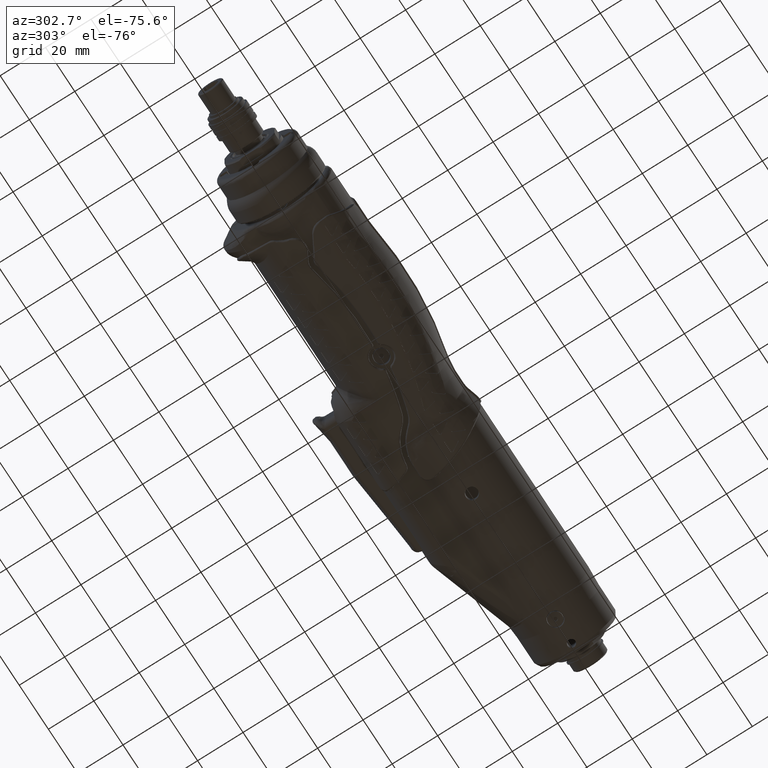
[diagram: clean part render]
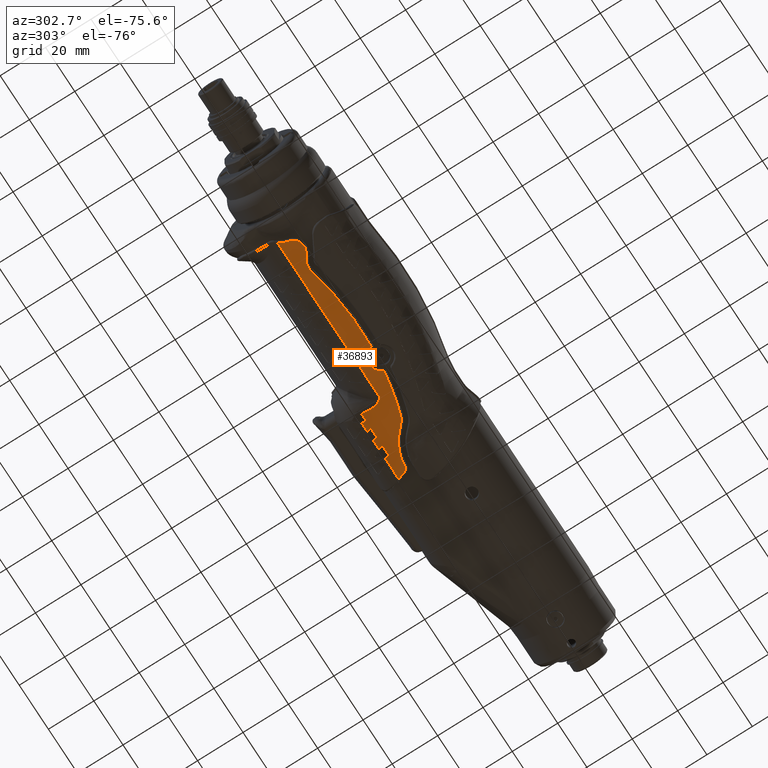
[diagram: same view with one face highlighted and labeled with its STEP entity id]
A machine part, auxiliary view. The second image highlights one B-rep face of the part: STEP entity #36893.
In plain terms, the highlighted planar face has unit normal (0, -0.2079, 0.9781).
Its self-contained STEP definition (entity closure, byte-faithful):
#663=PLANE('',#39919);
#1935=LINE('',#64039,#3849);
#1944=LINE('',#64290,#3858);
#1961=LINE('',#65082,#3875);
#1962=LINE('',#65084,#3876);
#1963=LINE('',#65086,#3877);
#1964=LINE('',#65090,#3878);
#1965=LINE('',#65094,#3879);
#1966=LINE('',#65096,#3880);
#1967=LINE('',#65118,#3881);
#1968=LINE('',#65125,#3882);
#1969=LINE('',#65129,#3883);
#1970=LINE('',#65131,#3884);
#1971=LINE('',#65133,#3885);
#1972=LINE('',#65137,#3886);
#3849=VECTOR('',#45681,10.);
#3858=VECTOR('',#45710,10.);
#3875=VECTOR('',#45803,10.);
#3876=VECTOR('',#45804,10.);
#3877=VECTOR('',#45805,10.);
#3878=VECTOR('',#45808,10.);
#3879=VECTOR('',#45811,10.);
#3880=VECTOR('',#45812,10.);
#3881=VECTOR('',#45833,10.);
#3882=VECTOR('',#45840,10.);
#3883=VECTOR('',#45843,10.);
#3884=VECTOR('',#45844,10.);
#3885=VECTOR('',#45845,10.);
#3886=VECTOR('',#45848,10.);
#5134=ELLIPSE('',#39920,0.511170297432306,0.500000000000048);
#5135=ELLIPSE('',#39921,0.511170297432301,0.500000000000043);
#5136=ELLIPSE('',#39922,65.8387343092747,64.4);
#5137=ELLIPSE('',#39923,2.45361742767483,2.4);
#5138=ELLIPSE('',#39924,21.060216254209,20.6);
#5139=ELLIPSE('',#39925,9.61000159172644,9.4);
#5140=ELLIPSE('',#39926,122.067467026823,119.4);
#5141=ELLIPSE('',#39927,0.408936237945806,0.4);
#5142=ELLIPSE('',#39928,5.46952218252515,5.35);
#5143=ELLIPSE('',#39929,0.408936237945806,0.4);
#5144=ELLIPSE('',#39930,122.067467026823,119.4);
#5145=ELLIPSE('',#39931,5.72510733124128,5.6);
#5146=ELLIPSE('',#39932,4.49829861740386,4.4);
#5147=ELLIPSE('',#39933,12.8814914952929,12.6);
#5148=ELLIPSE('',#39934,35.8288866687344,7.);
#5149=ELLIPSE('',#39935,0.511170297432301,0.500000000000043);
#5150=ELLIPSE('',#39936,0.511170297432306,0.500000000000048);
#5151=ELLIPSE('',#39937,0.511170297432301,0.500000000000043);
#7149=FACE_OUTER_BOUND('',#9513,.T.);
#9513=EDGE_LOOP('',(#28101,#28102,#28103,#28104,#28105,#28106,#28107,#28108,
#28109,#28110,#28111,#28112,#28113,#28114,#28115,#28116,#28117,#28118,#28119,
#28120,#28121,#28122,#28123,#28124,#28125,#28126,#28127,#28128,#28129,#28130,
#28131,#28132,#28133));
#12638=B_SPLINE_CURVE_WITH_KNOTS('',3,(#64092,#64093,#64094,#64095,#64096,
#64097,#64098,#64099,#64100,#64101,#64102,#64103),.UNSPECIFIED.,.F.,.F.,
(4,1,1,1,1,1,1,2,4),(1.72900103999928E-15,0.145879233489436,0.29175846697887,
0.364698083723588,0.437637700468305,0.510577317213022,0.583516933957739,
0.729396167447173,0.730968520433882),.UNSPECIFIED.);
#15710=VERTEX_POINT('',#64036);
#15711=VERTEX_POINT('',#64038);
#15713=VERTEX_POINT('',#64091);
#15732=VERTEX_POINT('',#64289);
#15819=VERTEX_POINT('',#65080);
#15820=VERTEX_POINT('',#65081);
#15821=VERTEX_POINT('',#65083);
#15822=VERTEX_POINT('',#65085);
#15823=VERTEX_POINT('',#65087);
#15824=VERTEX_POINT('',#65089);
#15825=VERTEX_POINT('',#65091);
#15826=VERTEX_POINT('',#65093);
#15827=VERTEX_POINT('',#65095);
#15828=VERTEX_POINT('',#65097);
#15829=VERTEX_POINT('',#65099);
#15830=VERTEX_POINT('',#65101);
#15831=VERTEX_POINT('',#65103);
#15832=VERTEX_POINT('',#65105);
#15833=VERTEX_POINT('',#65107);
#15834=VERTEX_POINT('',#65109);
#15835=VERTEX_POINT('',#65111);
#15836=VERTEX_POINT('',#65113);
#15837=VERTEX_POINT('',#65115);
#15838=VERTEX_POINT('',#65117);
#15839=VERTEX_POINT('',#65119);
#15840=VERTEX_POINT('',#65122);
#15841=VERTEX_POINT('',#65124);
#15842=VERTEX_POINT('',#65126);
#15843=VERTEX_POINT('',#65128);
#15844=VERTEX_POINT('',#65130);
#15845=VERTEX_POINT('',#65132);
#15846=VERTEX_POINT('',#65134);
#15847=VERTEX_POINT('',#65136);
#20160=EDGE_CURVE('',#15710,#15711,#1935,.T.);
#20163=EDGE_CURVE('',#15711,#15713,#12638,.T.);
#20192=EDGE_CURVE('',#15732,#15713,#1944,.T.);
#20288=EDGE_CURVE('',#15819,#15820,#1961,.T.);
#20289=EDGE_CURVE('',#15820,#15821,#1962,.T.);
#20290=EDGE_CURVE('',#15821,#15822,#1963,.T.);
#20291=EDGE_CURVE('',#15822,#15823,#5134,.T.);
#20292=EDGE_CURVE('',#15823,#15824,#1964,.T.);
#20293=EDGE_CURVE('',#15824,#15825,#5135,.T.);
#20294=EDGE_CURVE('',#15825,#15826,#1965,.T.);
#20295=EDGE_CURVE('',#15826,#15827,#1966,.T.);
#20296=EDGE_CURVE('',#15828,#15827,#5136,.T.);
#20297=EDGE_CURVE('',#15829,#15828,#5137,.T.);
#20298=EDGE_CURVE('',#15830,#15829,#5138,.T.);
#20299=EDGE_CURVE('',#15831,#15830,#5139,.T.);
#20300=EDGE_CURVE('',#15832,#15831,#5140,.T.);
#20301=EDGE_CURVE('',#15833,#15832,#5141,.T.);
#20302=EDGE_CURVE('',#15834,#15833,#5142,.T.);
#20303=EDGE_CURVE('',#15835,#15834,#5143,.T.);
#20304=EDGE_CURVE('',#15836,#15835,#5144,.T.);
#20305=EDGE_CURVE('',#15837,#15836,#5145,.T.);
#20306=EDGE_CURVE('',#15838,#15837,#1967,.T.);
#20307=EDGE_CURVE('',#15839,#15838,#5146,.T.);
#20308=EDGE_CURVE('',#15732,#15839,#5147,.T.);
#20309=EDGE_CURVE('',#15840,#15710,#5148,.T.);
#20310=EDGE_CURVE('',#15840,#15841,#1968,.T.);
#20311=EDGE_CURVE('',#15841,#15842,#5149,.T.);
#20312=EDGE_CURVE('',#15842,#15843,#1969,.T.);
#20313=EDGE_CURVE('',#15843,#15844,#1970,.T.);
#20314=EDGE_CURVE('',#15844,#15845,#1971,.T.);
#20315=EDGE_CURVE('',#15845,#15846,#5150,.T.);
#20316=EDGE_CURVE('',#15846,#15847,#1972,.T.);
#20317=EDGE_CURVE('',#15847,#15819,#5151,.T.);
#28101=ORIENTED_EDGE('',*,*,#20288,.T.);
#28102=ORIENTED_EDGE('',*,*,#20289,.T.);
#28103=ORIENTED_EDGE('',*,*,#20290,.T.);
#28104=ORIENTED_EDGE('',*,*,#20291,.T.);
#28105=ORIENTED_EDGE('',*,*,#20292,.T.);
#28106=ORIENTED_EDGE('',*,*,#20293,.T.);
#28107=ORIENTED_EDGE('',*,*,#20294,.T.);
#28108=ORIENTED_EDGE('',*,*,#20295,.T.);
#28109=ORIENTED_EDGE('',*,*,#20296,.F.);
#28110=ORIENTED_EDGE('',*,*,#20297,.F.);
#28111=ORIENTED_EDGE('',*,*,#20298,.F.);
#28112=ORIENTED_EDGE('',*,*,#20299,.F.);
#28113=ORIENTED_EDGE('',*,*,#20300,.F.);
#28114=ORIENTED_EDGE('',*,*,#20301,.F.);
#28115=ORIENTED_EDGE('',*,*,#20302,.F.);
#28116=ORIENTED_EDGE('',*,*,#20303,.F.);
#28117=ORIENTED_EDGE('',*,*,#20304,.F.);
#28118=ORIENTED_EDGE('',*,*,#20305,.F.);
#28119=ORIENTED_EDGE('',*,*,#20306,.F.);
#28120=ORIENTED_EDGE('',*,*,#20307,.F.);
#28121=ORIENTED_EDGE('',*,*,#20308,.F.);
#28122=ORIENTED_EDGE('',*,*,#20192,.T.);
#28123=ORIENTED_EDGE('',*,*,#20163,.F.);
#28124=ORIENTED_EDGE('',*,*,#20160,.F.);
#28125=ORIENTED_EDGE('',*,*,#20309,.F.);
#28126=ORIENTED_EDGE('',*,*,#20310,.T.);
#28127=ORIENTED_EDGE('',*,*,#20311,.T.);
#28128=ORIENTED_EDGE('',*,*,#20312,.T.);
#28129=ORIENTED_EDGE('',*,*,#20313,.T.);
#28130=ORIENTED_EDGE('',*,*,#20314,.T.);
#28131=ORIENTED_EDGE('',*,*,#20315,.T.);
#28132=ORIENTED_EDGE('',*,*,#20316,.T.);
#28133=ORIENTED_EDGE('',*,*,#20317,.T.);
#36893=ADVANCED_FACE('',(#7149),#663,.F.);
#39919=AXIS2_PLACEMENT_3D('',#65079,#45801,#45802);
#39920=AXIS2_PLACEMENT_3D('',#65088,#45806,#45807);
#39921=AXIS2_PLACEMENT_3D('',#65092,#45809,#45810);
#39922=AXIS2_PLACEMENT_3D('',#65098,#45813,#45814);
#39923=AXIS2_PLACEMENT_3D('',#65100,#45815,#45816);
#39924=AXIS2_PLACEMENT_3D('',#65102,#45817,#45818);
#39925=AXIS2_PLACEMENT_3D('',#65104,#45819,#45820);
#39926=AXIS2_PLACEMENT_3D('',#65106,#45821,#45822);
#39927=AXIS2_PLACEMENT_3D('',#65108,#45823,#45824);
#39928=AXIS2_PLACEMENT_3D('',#65110,#45825,#45826);
#39929=AXIS2_PLACEMENT_3D('',#65112,#45827,#45828);
#39930=AXIS2_PLACEMENT_3D('',#65114,#45829,#45830);
#39931=AXIS2_PLACEMENT_3D('',#65116,#45831,#45832);
#39932=AXIS2_PLACEMENT_3D('',#65120,#45834,#45835);
#39933=AXIS2_PLACEMENT_3D('',#65121,#45836,#45837);
#39934=AXIS2_PLACEMENT_3D('',#65123,#45838,#45839);
#39935=AXIS2_PLACEMENT_3D('',#65127,#45841,#45842);
#39936=AXIS2_PLACEMENT_3D('',#65135,#45846,#45847);
#39937=AXIS2_PLACEMENT_3D('',#65138,#45849,#45850);
#45681=DIRECTION('',(0.0587349390438922,-0.976458939688751,-0.207552754829778));
#45710=DIRECTION('',(1.,8.61042561640765E-16,0.));
#45801=DIRECTION('center_axis',(0.,-0.207911690815441,0.978147600734298));
#45802=DIRECTION('ref_axis',(0.,-0.978147600734298,-0.207911690815441));
#45803=DIRECTION('',(-0.491738079932223,0.851715338458998,0.181037683862354));
#45804=DIRECTION('',(1.,0.,0.));
#45805=DIRECTION('',(-0.491738079932217,-0.851715338459001,-0.181037683862355));
#45806=DIRECTION('center_axis',(0.,-0.207911690815441,0.978147600734298));
#45807=DIRECTION('ref_axis',(-1.35745248477121E-16,-0.978147600734298,-0.207911690815441));
#45808=DIRECTION('',(1.,4.16208525291433E-15,8.84678530726665E-16));
#45809=DIRECTION('center_axis',(0.,-0.207911690815441,0.978147600734298));
#45810=DIRECTION('ref_axis',(-3.47507836101434E-14,0.978147600734298,0.207911690815441));
#45811=DIRECTION('',(-0.491738079932217,0.851715338459001,0.181037683862355));
#45812=DIRECTION('',(1.,0.,0.));
#45813=DIRECTION('center_axis',(0.,-0.207911690815441,0.978147600734298));
#45814=DIRECTION('ref_axis',(1.21411899259052E-15,-0.978147600734299,-0.207911690815441));
#45815=DIRECTION('center_axis',(0.,-0.207911690815441,0.978147600734298));
#45816=DIRECTION('ref_axis',(4.24203901491044E-17,-0.978147600734298,-0.207911690815441));
#45817=DIRECTION('center_axis',(0.,0.207911690815441,-0.978147600734298));
#45818=DIRECTION('ref_axis',(0.,0.978147600734298,0.207911690815441));
#45819=DIRECTION('center_axis',(0.,-0.207911690815441,0.978147600734298));
#45820=DIRECTION('ref_axis',(-2.88819677610924E-16,-0.978147600734298,-0.207911690815441));
#45821=DIRECTION('center_axis',(0.,-0.207911690815441,0.978147600734298));
#45822=DIRECTION('ref_axis',(-5.09328905508845E-16,-0.978147600734298,-0.207911690815441));
#45823=DIRECTION('center_axis',(0.,-0.207911690815441,0.978147600734298));
#45824=DIRECTION('ref_axis',(0.,-0.978147600734299,-0.207911690815441));
#45825=DIRECTION('center_axis',(0.,0.207911690815441,-0.978147600734298));
#45826=DIRECTION('ref_axis',(0.,0.978147600734298,0.207911690815441));
#45827=DIRECTION('center_axis',(0.,-0.207911690815441,0.978147600734298));
#45828=DIRECTION('ref_axis',(-8.48407802982088E-17,-0.978147600734299,-0.207911690815441));
#45829=DIRECTION('center_axis',(0.,-0.207911690815441,0.978147600734298));
#45830=DIRECTION('ref_axis',(-5.09328905508845E-16,-0.978147600734298,-0.207911690815441));
#45831=DIRECTION('center_axis',(0.,0.207911690815441,-0.978147600734298));
#45832=DIRECTION('ref_axis',(-5.81765350616289E-16,0.978147600734298,0.207911690815441));
#45833=DIRECTION('',(0.861175539935107,0.497199929804925,0.105683107540679));
#45834=DIRECTION('center_axis',(0.,-0.207911690815441,0.978147600734298));
#45835=DIRECTION('ref_axis',(-1.85107157014274E-16,-0.978147600734298,-0.207911690815441));
#45836=DIRECTION('center_axis',(0.,0.207911690815441,-0.978147600734298));
#45837=DIRECTION('ref_axis',(-8.61874593505613E-17,0.978147600734298,0.207911690815441));
#45838=DIRECTION('center_axis',(0.,-0.207911690815441,0.978147600734298));
#45839=DIRECTION('ref_axis',(-0.348740728113978,-0.916738751348104,-0.194858836933951));
#45840=DIRECTION('',(1.,0.,0.));
#45841=DIRECTION('center_axis',(0.,-0.207911690815441,0.978147600734298));
#45842=DIRECTION('ref_axis',(0.,0.978147600734298,0.207911690815441));
#45843=DIRECTION('',(-0.491738079932213,0.851715338459003,0.181037683862355));
#45844=DIRECTION('',(1.,0.,0.));
#45845=DIRECTION('',(-0.491738079932225,-0.851715338458997,-0.181037683862354));
#45846=DIRECTION('center_axis',(0.,-0.207911690815441,0.978147600734298));
#45847=DIRECTION('ref_axis',(-1.35745248477121E-16,-0.978147600734298,-0.207911690815441));
#45848=DIRECTION('',(1.,-4.16208525291433E-15,-8.84678530726665E-16));
#45849=DIRECTION('center_axis',(0.,-0.207911690815441,0.978147600734298));
#45850=DIRECTION('ref_axis',(3.47507836101434E-14,0.978147600734298,0.207911690815441));
#64036=CARTESIAN_POINT('',(83.2278555816758,16.791070475695,-14.979798994844));
#64038=CARTESIAN_POINT('',(83.2964907134277,15.6500224203664,-15.2223362461821));
#64039=CARTESIAN_POINT('',(82.8024392787364,23.8635482692644,-13.4764974325728));
#64091=CARTESIAN_POINT('',(81.1207112248895,9.03449874400394,-16.6285092124599));
#64092=CARTESIAN_POINT('Ctrl Pts',(83.2964907134277,15.6500224203664,-15.2223362461821));
#64093=CARTESIAN_POINT('Ctrl Pts',(83.3250514063836,15.1752054815139,-15.3232617021261));
#64094=CARTESIAN_POINT('Ctrl Pts',(83.3268517603969,14.2178943029064,-15.526744474681));
#64095=CARTESIAN_POINT('Ctrl Pts',(83.1716032045308,13.0352348455084,-15.778126502565));
#64096=CARTESIAN_POINT('Ctrl Pts',(82.9392581100998,12.1070298348372,-15.9754225681459));
#64097=CARTESIAN_POINT('Ctrl Pts',(82.7076357916098,11.4280633988125,-16.1197413392748));
#64098=CARTESIAN_POINT('Ctrl Pts',(82.41542703443,10.7728889819592,-16.259002960598));
#64099=CARTESIAN_POINT('Ctrl Pts',(81.9399984668656,9.93948588838398,-16.4361482566733));
#64100=CARTESIAN_POINT('Ctrl Pts',(81.4812680709134,9.37620706709701,-16.5558768660812));
#64101=CARTESIAN_POINT('Ctrl Pts',(81.1282538578445,9.04161844224877,-16.6269958738818));
#64102=CARTESIAN_POINT('Ctrl Pts',(81.1244851537899,9.0380561468584,-16.6277530631276));
#64103=CARTESIAN_POINT('Ctrl Pts',(81.1207112248718,9.03449874383339,-16.6285092124831));
#64289=CARTESIAN_POINT('',(10.8478146539284,9.03449874400387,-16.6285092124599));
#64290=CARTESIAN_POINT('',(88.1530330881274,9.03449874400394,-16.6285092124599));
#65079=CARTESIAN_POINT('Origin',(0.,9.03449874400394,-16.6285092124599));
#65080=CARTESIAN_POINT('',(94.5669872981085,19.2499890637972,-14.4571397143366));
#65081=CARTESIAN_POINT('',(93.9193867086727,20.3716661877115,-14.21871988161));
#65082=CARTESIAN_POINT('',(84.7259102217145,36.2952345613134,-10.8340609386053));
#65083=CARTESIAN_POINT('',(98.0806132913292,20.3716661877115,-14.21871988161));
#65084=CARTESIAN_POINT('',(48.,20.3716661877115,-14.21871988161));
#65085=CARTESIAN_POINT('',(97.4330127018934,19.2499890637972,-14.4571397143366));
#65086=CARTESIAN_POINT('',(85.092698380116,-2.12406232289199,-19.0003345859966));
#65087=CARTESIAN_POINT('',(97.8660254037857,18.4999890637971,-14.6165571355872));
#65088=CARTESIAN_POINT('Origin',(97.8660254037857,18.9999890637972,-14.5102788547534));
#65089=CARTESIAN_POINT('',(102.133974596216,18.4999890637972,-14.6165571355872));
#65090=CARTESIAN_POINT('',(48.9330127018928,18.4999890637969,-14.6165571355873));
#65091=CARTESIAN_POINT('',(102.566987298108,19.2499890637972,-14.4571397143366));
#65092=CARTESIAN_POINT('Origin',(102.133974596216,18.9999890637972,-14.5102788547534));
#65093=CARTESIAN_POINT('',(101.919386708673,20.3716661877115,-14.21871988161));
#65094=CARTESIAN_POINT('',(91.7586848646931,37.9705180220437,-10.477968446374));
#65095=CARTESIAN_POINT('',(111.614878326556,20.3716661877086,-14.2187198815942));
#65096=CARTESIAN_POINT('',(48.,20.3716661877115,-14.21871988161));
#65097=CARTESIAN_POINT('',(110.346212439023,17.1170068298385,-14.9105190840848));
#65098=CARTESIAN_POINT('Origin',(51.,42.1247470144757,-9.594959815363));
#65099=CARTESIAN_POINT('',(108.32920775528,15.6568792290203,-15.2208787865106));
#65100=CARTESIAN_POINT('Origin',(108.134552348128,18.0489723025579,-14.7124237076107));
#65101=CARTESIAN_POINT('',(94.6066591570518,8.8143437102587,-16.6753046094666));
#65102=CARTESIAN_POINT('Origin',(110.,-4.87525298551072,-19.5851182137347));
#65103=CARTESIAN_POINT('',(90.3668372023651,6.08288265625719,-17.255894579434));
#65104=CARTESIAN_POINT('Origin',(87.5825133355122,15.0610528821147,-15.3475255861598));
#65105=CARTESIAN_POINT('',(73.2847613631209,2.13310535333718,-18.0954456622951));
#65106=CARTESIAN_POINT('Origin',(55.,120.124747014489,6.98445199470839));
#65107=CARTESIAN_POINT('',(72.8601315589992,2.36117748048231,-18.046967435137));
#65108=CARTESIAN_POINT('Origin',(73.2235058811674,2.52838723494908,-18.0114259046502));
#65109=CARTESIAN_POINT('',(62.77368417393,1.26847901376643,-18.2792276641615));
#65110=CARTESIAN_POINT('Origin',(68.,0.124747014489265,-18.522335405397));
#65111=CARTESIAN_POINT('',(62.4077481655722,0.954762256936076,-18.3459102193309));
#65112=CARTESIAN_POINT('Origin',(62.3829315888031,1.35399168660962,-18.261051384443));
#65113=CARTESIAN_POINT('',(26.344,4.21446419195449,-17.6530391839623));
#65114=CARTESIAN_POINT('Origin',(55.,120.124747014489,6.98445199470839));
#65115=CARTESIAN_POINT('',(22.2,3.62787828056615,-17.7777218684096));
#65116=CARTESIAN_POINT('Origin',(25.,-1.22186398062671,-18.8085664084226));
#65117=CARTESIAN_POINT('',(18.9448497735223,1.74851642104194,-18.1771925633992));
#65118=CARTESIAN_POINT('',(15.9600543909444,0.0252440034212272,-18.5434854233052));
#65119=CARTESIAN_POINT('',(12.4108886556708,4.79956718557078,-17.5286717034178));
#65120=CARTESIAN_POINT('Origin',(16.744849773524,5.55902819769448,-17.3672432819603));
#65121=CARTESIAN_POINT('Origin',(0.,2.62474701448926,-17.9909440012281));
#65122=CARTESIAN_POINT('',(83.2055795912632,18.4999890637972,-14.6165571355872));
#65123=CARTESIAN_POINT('Origin',(97.3096328866423,45.8490799757535,-8.80332840660869));
#65124=CARTESIAN_POINT('',(86.1339745962162,18.4999890637972,-14.6165571355872));
#65125=CARTESIAN_POINT('',(40.9330127018929,18.4999890637972,-14.6165571355872));
#65126=CARTESIAN_POINT('',(86.5669872981084,19.2499890637972,-14.4571397143366));
#65127=CARTESIAN_POINT('Origin',(86.1339745962162,18.9999890637972,-14.5102788547534));
#65128=CARTESIAN_POINT('',(85.9193867086727,20.3716661877115,-14.21871988161));
#65129=CARTESIAN_POINT('',(77.6931355787366,34.6199511005825,-11.1901534308368));
#65130=CARTESIAN_POINT('',(90.0806132913292,20.3716661877115,-14.21871988161));
#65131=CARTESIAN_POINT('',(48.,20.3716661877115,-14.21871988161));
#65132=CARTESIAN_POINT('',(89.4330127018935,19.2499890637972,-14.4571397143366));
#65133=CARTESIAN_POINT('',(78.0599237371374,-0.44877886216159,-18.6442420937653));
#65134=CARTESIAN_POINT('',(89.8660254037857,18.4999890637972,-14.6165571355872));
#65135=CARTESIAN_POINT('Origin',(89.8660254037857,18.9999890637972,-14.5102788547534));
#65136=CARTESIAN_POINT('',(94.1339745962162,18.4999890637972,-14.6165571355872));
#65137=CARTESIAN_POINT('',(44.9330127018929,18.4999890637974,-14.6165571355872));
#65138=CARTESIAN_POINT('Origin',(94.1339745962162,18.9999890637972,-14.5102788547534));